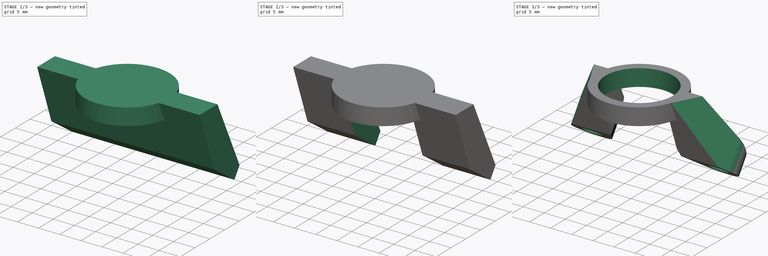
[diagram: build sequence overview — one tinted view per stage of 3, left to right]
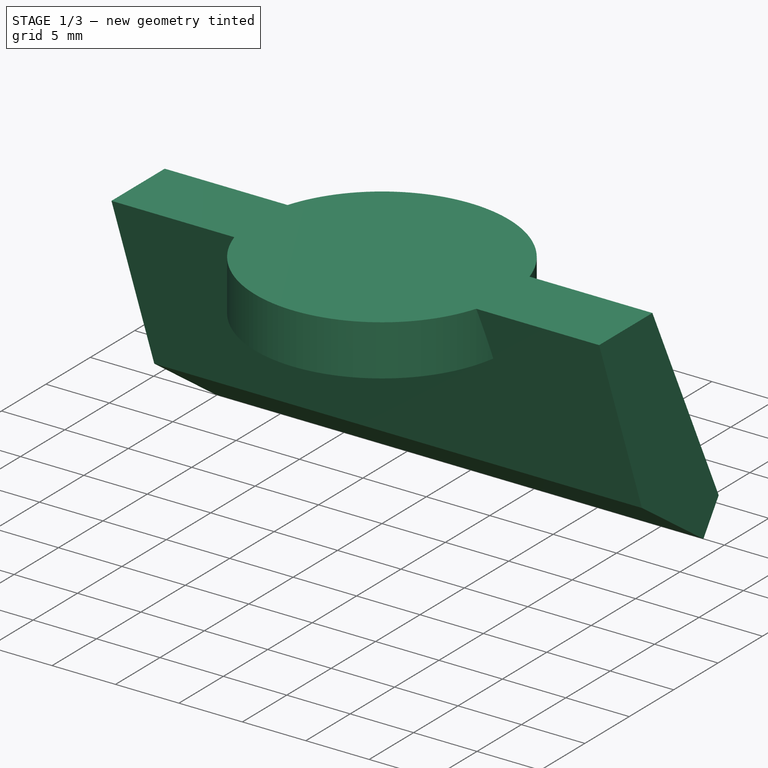
[diagram: stage 1 of 3 — iso view after this stage's code; geometry added in this stage tinted green]
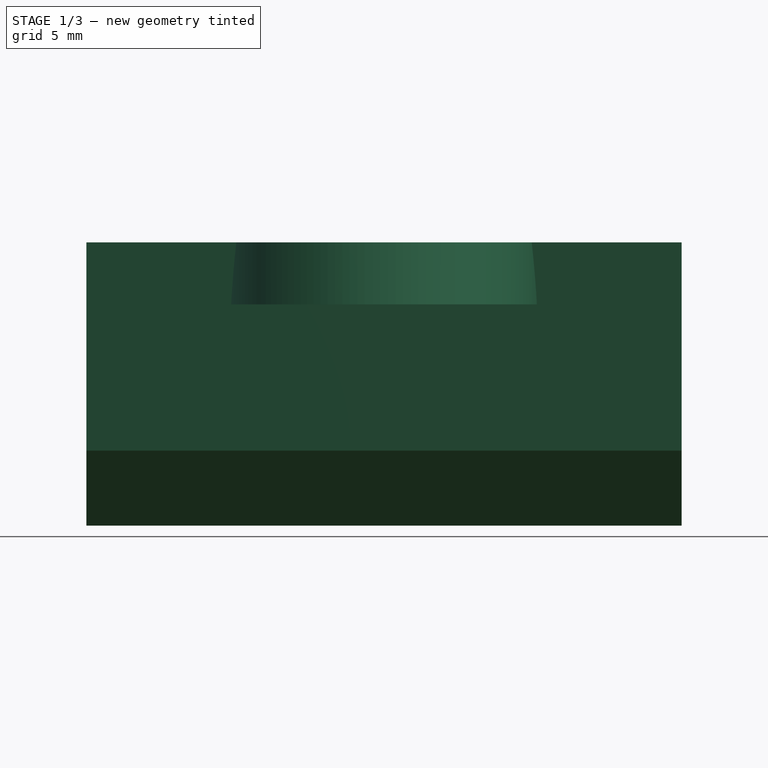
[diagram: stage 1 of 3 — front view after this stage's code; geometry added in this stage tinted green]
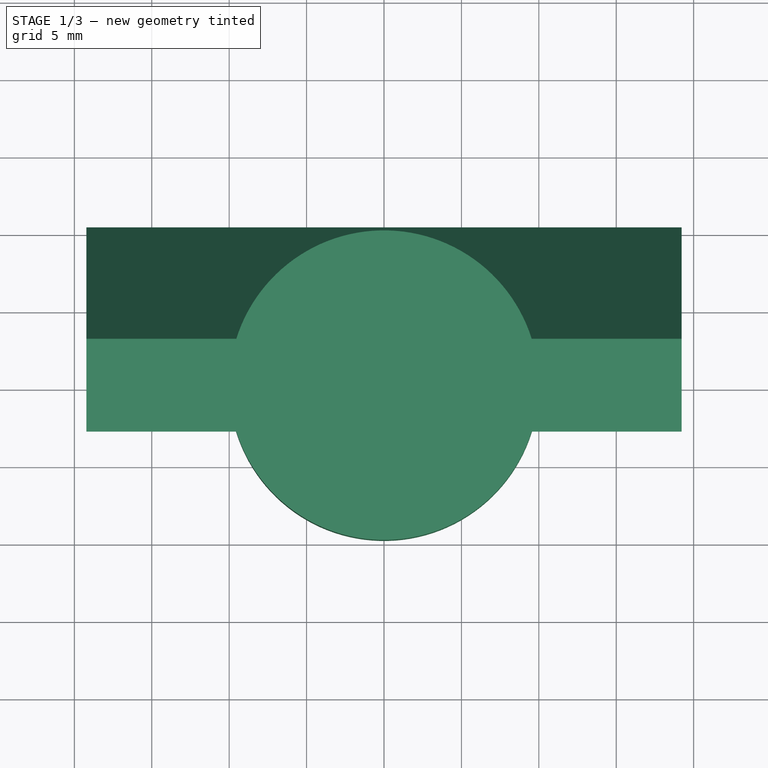
[diagram: stage 1 of 3 — top view after this stage's code; geometry added in this stage tinted green]
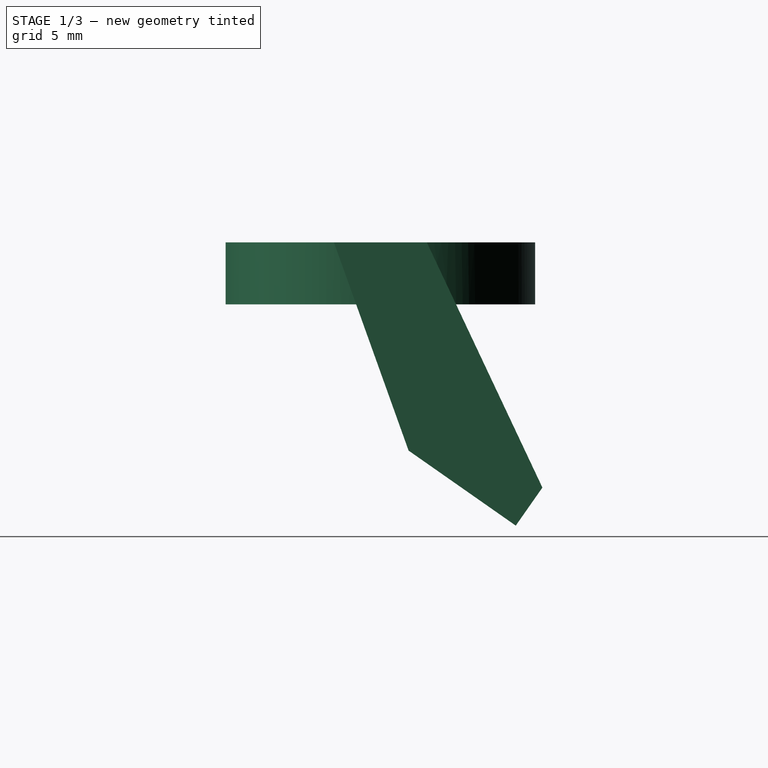
[diagram: stage 1 of 3 — right view after this stage's code; geometry added in this stage tinted green]
FCSTD DOCUMENT  (FreeCAD 0.18R13638 (Git))
Label: antenna_mount
License: All rights reserved
LicenseURL: http://en.wikipedia.org/wiki/All_rights_reserved
objects: Sketcher::SketchObject×5, PartDesign::Pocket×3, PartDesign::Pad×2, Spreadsheet::Sheet×1, PartDesign::Body×1
note: 16 computed .brp shape members not serialized (recipe doc carries the construction recipe); baked Part::Feature solids carry a one-line shape summary decoded from their .brp

FEATURE [Sketcher::SketchObject] Sketch
  MapMode = 5
  Support = -> [XY_Plane]
  expr: Constraints[1] = Data.antenna_mount_or
  sketch-geometry (1):
    g0: Circle CenterX=0 CenterY=0 CenterZ=0 NormalX=0 NormalY=0 NormalZ=1 AngleXU=0 Radius=10
  constraints (2):
    c: Coincident(g0,g-1)
    c: Radius(g0) = 10
FEATURE [PartDesign::Pad] Pad
  Length = 4
  Length2 = 100
  Profile = -> Sketch
  Type = 0
  expr: Length = Data.antenna_mount_h
FEATURE [Sketcher::SketchObject] Sketch001
  MapMode = 5
  Placement = pos=(0,0,0) rot=(0.57735,0.57735,0.57735;2.0944rad)
  Support = -> [YZ_Plane]
  expr: Constraints[14] = Data.standoff_mount_h
  expr: Constraints[7] = Data.antenna_mount_angle
  expr: Constraints[4] = Data.antenna_mount_h
  expr: Constraints[10] = Data.standoff_mount_od
  sketch-geometry (6):
    g0: LineSegment StartX=-3 StartY=4 StartZ=0 EndX=3 EndY=4 EndZ=0
    g1: LineSegment StartX=3 StartY=4 StartZ=0 EndX=10.465 EndY=-11.8362 EndZ=0
    g2: LineSegment StartX=10.465 StartY=-11.8362 StartZ=0 EndX=8.74425 EndY=-14.2937 EndZ=0
    g3: LineSegment StartX=8.74425 StartY=-14.2937 StartZ=0 EndX=1.82242 EndY=-9.44695 EndZ=0
    g4: LineSegment [constr] StartX=-6.91632 StartY=-1.59308 StartZ=0 EndX=-3 EndY=4 EndZ=0
    g5: LineSegment StartX=-3 StartY=4 StartZ=0 EndX=1.82242 EndY=-9.44695 EndZ=0
  constraints (15):
    c: Coincident(g1,g2)
    c: Coincident(g2,g3)
    c: Coincident(g4,g0)
    c: Horizontal(g0)
    c: DistanceY(g-1,g0) = 4
    c: Symmetric(g0,g0,g-2)
    c: Perpendicular(g3,g4)
    c: Angle(g3,g-1) = 0.610865
    c: Distance(g0) = 6
    c: Perpendicular(g2,g3)
    c: Distance(g3) = 8.45
    c: Coincident(g0,g1)
    c: Coincident(g0,g5)
    c: Coincident(g5,g3)
    c: Distance(g2) = 3
FEATURE [PartDesign::Pad] Pad001
  BaseFeature = -> Pad
  Length = 19.225
  Length2 = 19.225
  Profile = -> Sketch001
  Type = 4
  expr: Length2 = Data.support_w
  expr: Length = Data.support_w
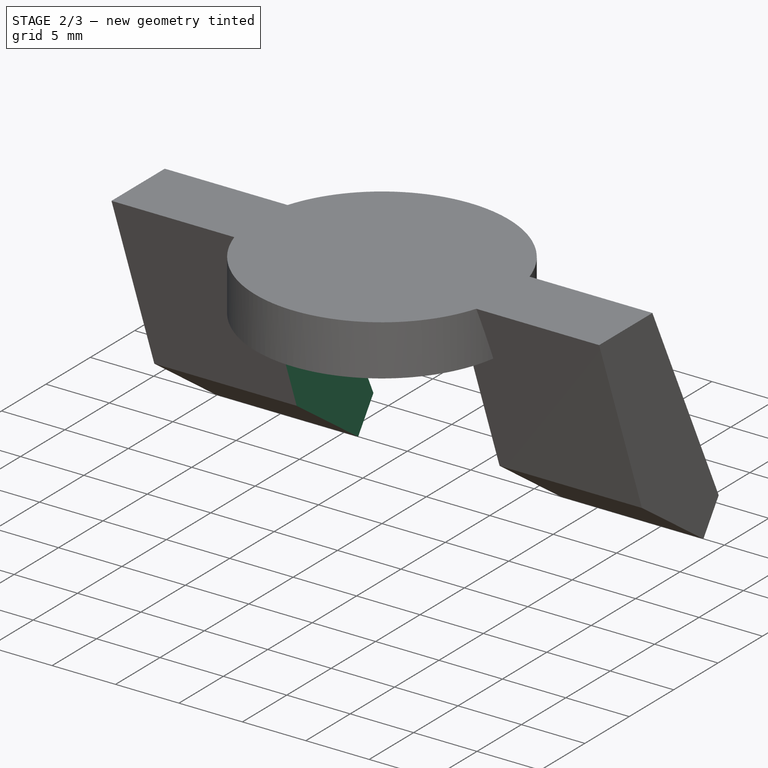
[diagram: stage 2 of 3 — iso view after this stage's code; geometry added in this stage tinted green]
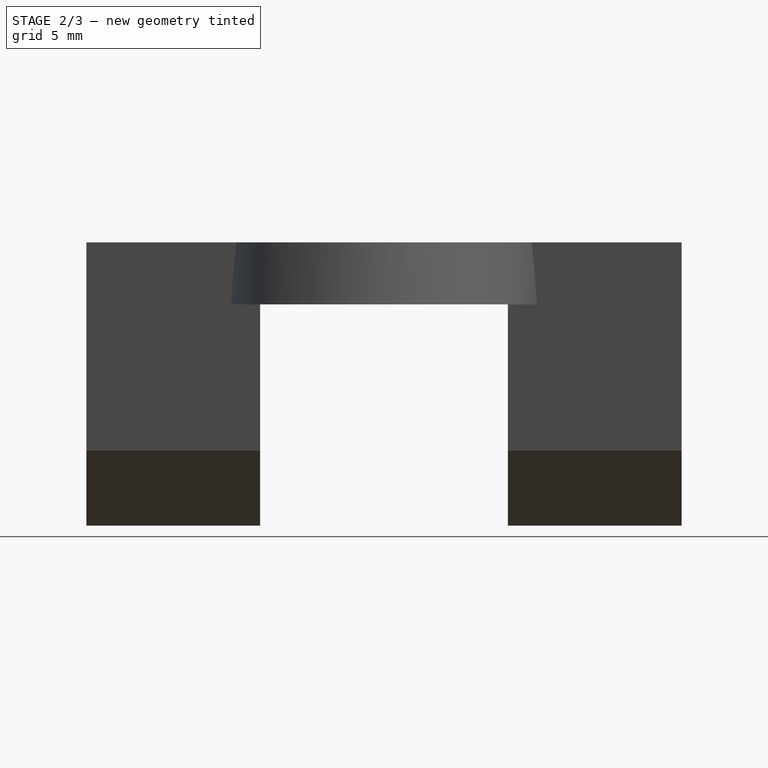
[diagram: stage 2 of 3 — front view after this stage's code; geometry added in this stage tinted green]
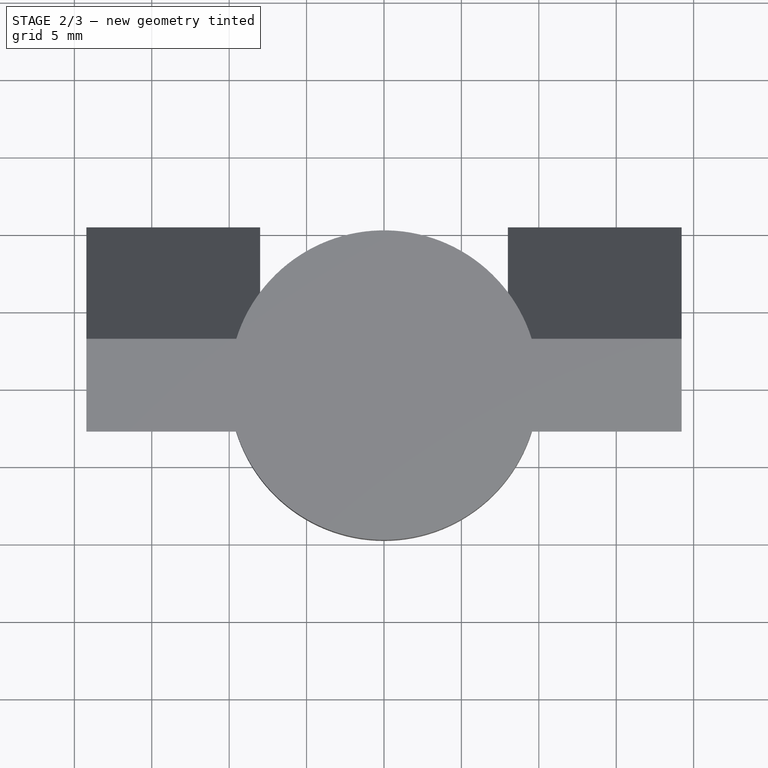
[diagram: stage 2 of 3 — top view after this stage's code; geometry added in this stage tinted green]
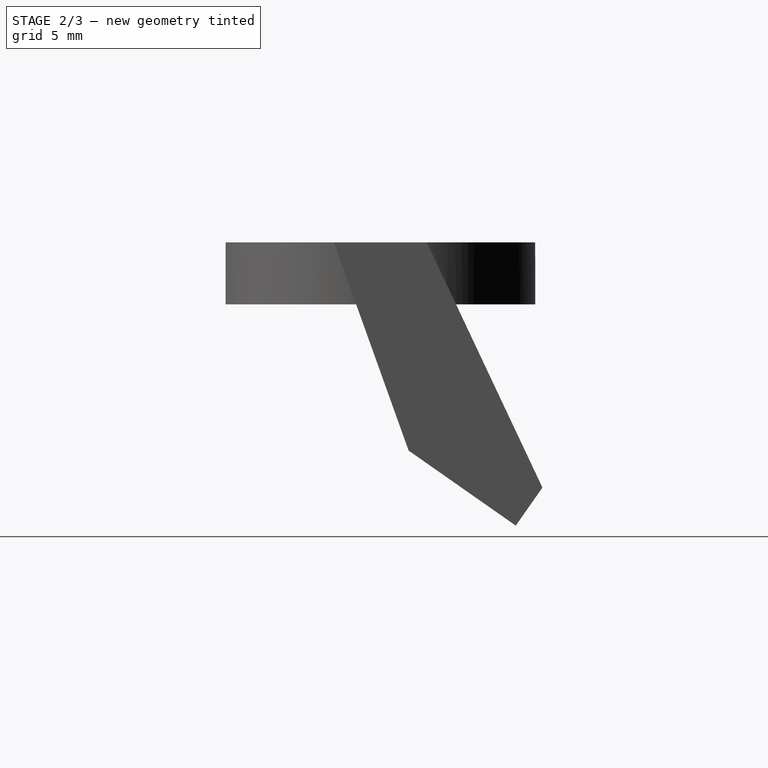
[diagram: stage 2 of 3 — right view after this stage's code; geometry added in this stage tinted green]
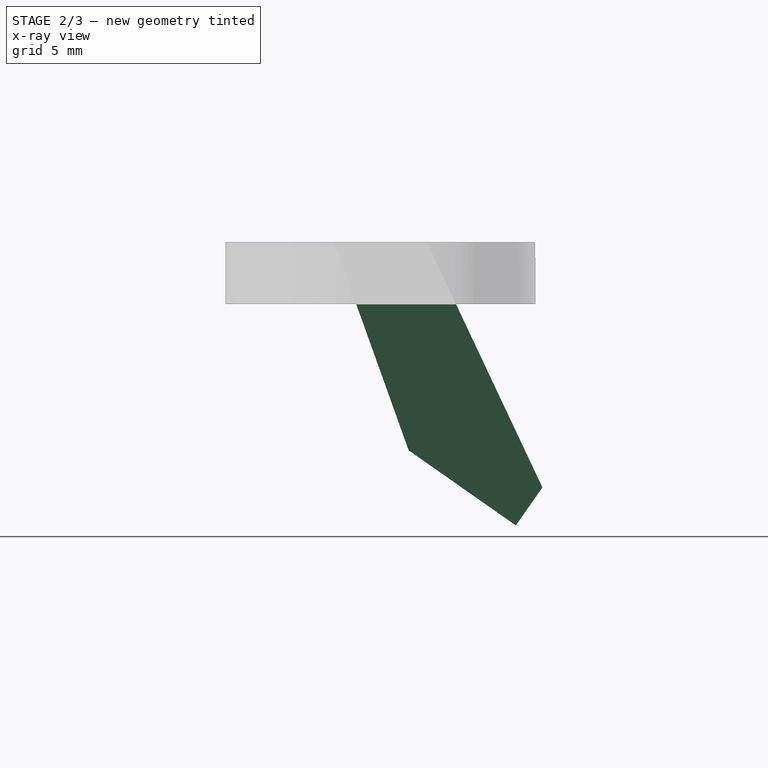
[diagram: stage 2 of 3 — x-ray composite at the right view; earlier geometry ghosted, this stage's added geometry solid]
FEATURE [Sketcher::SketchObject] Sketch002
  MapMode = 5
  Placement = pos=(0,0,0) rot=(1,0,0;1.5708rad)
  Support = -> [XZ_Plane]
  expr: Constraints[10] = Data.antenna_r * 2
  sketch-geometry (4):
    g0: LineSegment StartX=-8 StartY=0 StartZ=0 EndX=8 EndY=0 EndZ=0
    g1: LineSegment StartX=8 StartY=0 StartZ=0 EndX=8 EndY=-14.7085 EndZ=0
    g2: LineSegment StartX=8 StartY=-14.7085 StartZ=0 EndX=-8 EndY=-14.7085 EndZ=0
    g3: LineSegment StartX=-8 StartY=-14.7085 StartZ=0 EndX=-8 EndY=0 EndZ=0
  constraints (11):
    c: Coincident(g0,g1)
    c: Coincident(g1,g2)
    c: Coincident(g2,g3)
    c: Coincident(g3,g0)
    c: Horizontal(g0)
    c: Horizontal(g2)
    c: Vertical(g1)
    c: Vertical(g3)
    c: PointOnObject(g0,g-1)
    c: Symmetric(g0,g0,g-2)
    c: DistanceX(g0,g0) = 16
FEATURE [PartDesign::Pocket] Pocket
  BaseFeature = -> Pad001
  Length = 100
  Length2 = 100
  Profile = -> Sketch002
  Type = 4
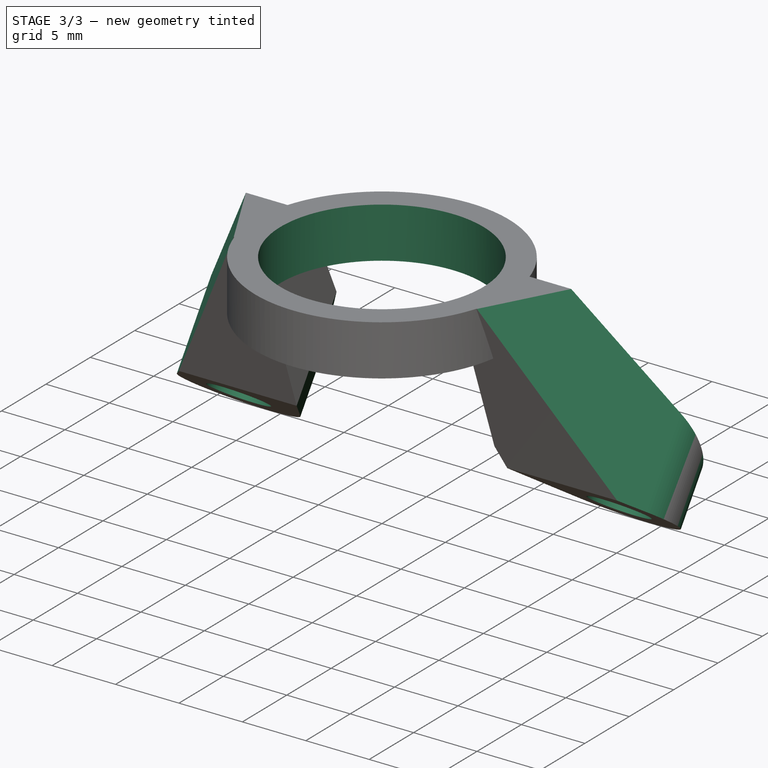
[diagram: stage 3 of 3 — iso view after this stage's code; geometry added in this stage tinted green]
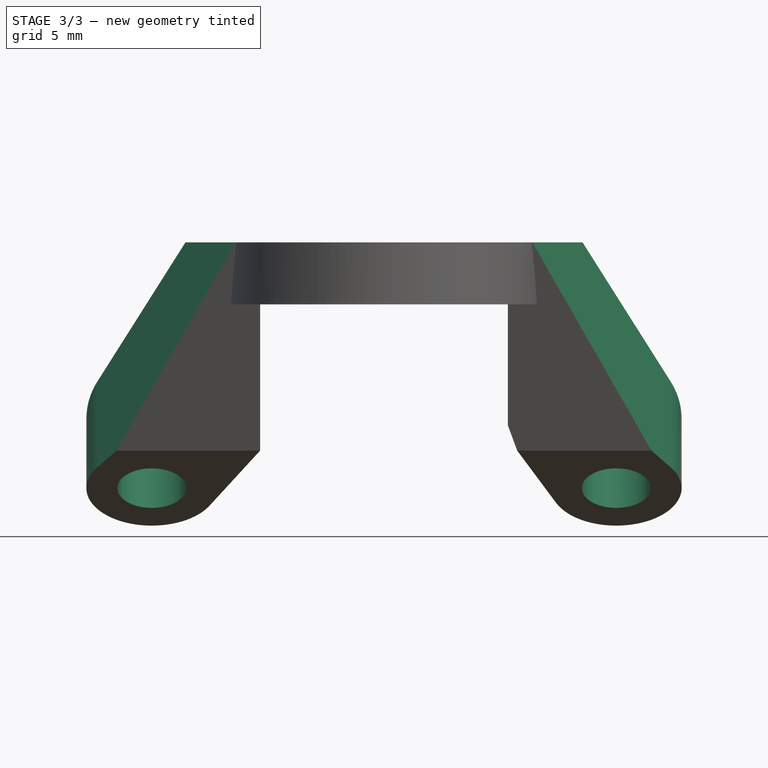
[diagram: stage 3 of 3 — front view after this stage's code; geometry added in this stage tinted green]
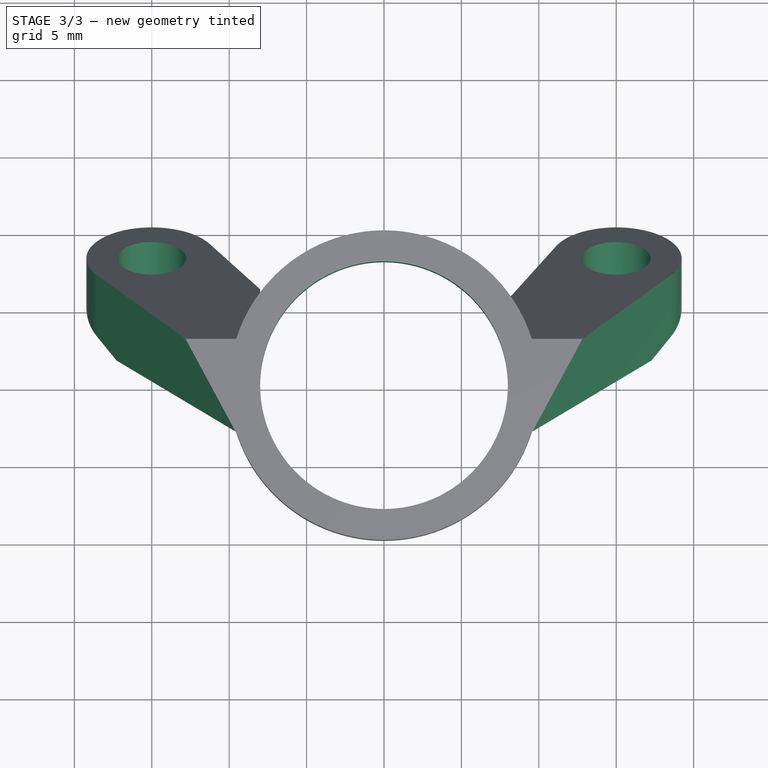
[diagram: stage 3 of 3 — top view after this stage's code; geometry added in this stage tinted green]
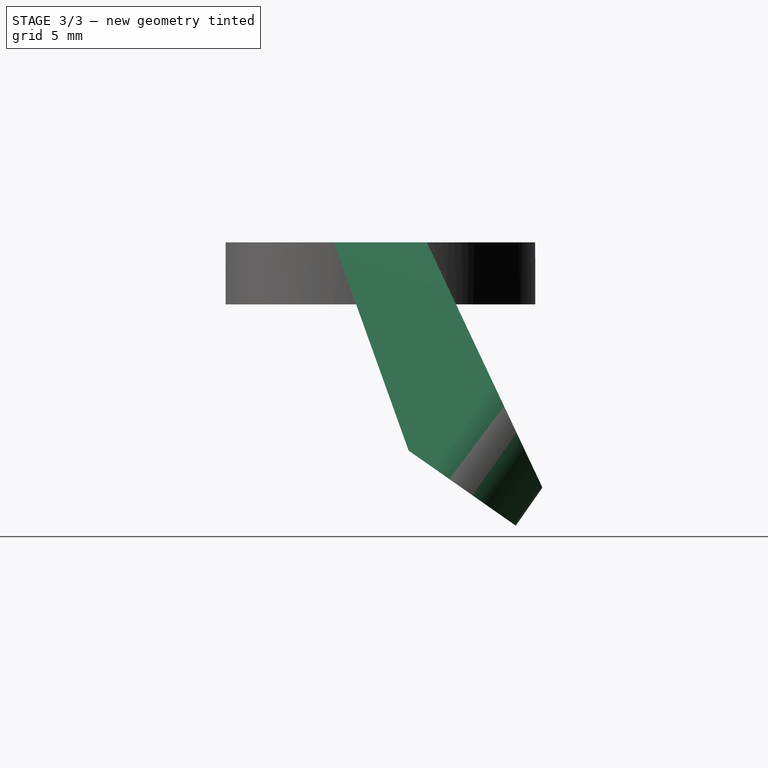
[diagram: stage 3 of 3 — right view after this stage's code; geometry added in this stage tinted green]
FEATURE [Spreadsheet::Sheet] Spreadsheet  label="Data"
  cells = A1=antenna_r; B1(antenna_r)=8; A2=antenna_mount_or; B2(antenna_mount_or)==antenna_r + 2; A3=antenna_mount_h; B3(antenna_mount_h)=4; A4=antenna_mount_angle; B4(antenna_mount_angle)=35; A5=standoff_mount_od; B5(standoff_mount_od)=8.4499999999999993; A6=standoff_dia; B6(standoff_dia)=4.4500000000000002; A7=standoff_mount_h; B7(standoff_mount_h)=3; A8=support_w; B8(support_w)==(standoff_distance + standoff_mount_od) / 2; A9=standoff_distance; B9(standoff_distance)=30
FEATURE [Sketcher::SketchObject] Sketch005
  ExternalGeometry = -> [Pocket]
  MapMode = 5
  Placement = pos=(0,-3.83906,-5.48274) rot=(1,0,0;2.53073rad)
  Support = -> [Pocket]
  expr: Constraints[17] = Data.standoff_mount_od / 2
  expr: Constraints[1] = -Data.standoff_distance / 2
  expr: Constraints[16] = Data.standoff_mount_od / 2
  expr: Constraints[0] = Data.standoff_dia / 2
  expr: Constraints[28] = Data.standoff_mount_od / 2
  sketch-geometry (18):
    g0: Circle CenterX=-15 CenterY=-11.1364 CenterZ=0 NormalX=0 NormalY=0 NormalZ=1 AngleXU=0 Radius=2.225
    g1: Circle CenterX=15 CenterY=-11.1364 CenterZ=0 NormalX=0 NormalY=0 NormalZ=1 AngleXU=0 Radius=2.225
    g2: LineSegment [constr] StartX=-15 StartY=-11.1364 StartZ=0 EndX=0 EndY=-11.1364 EndZ=0
    g3: LineSegment [constr] StartX=0 StartY=-11.1364 StartZ=0 EndX=15 EndY=-11.1364 EndZ=0
    g4: ArcOfCircle CenterX=-15 CenterY=-11.1364 CenterZ=0 NormalX=0 NormalY=0 NormalZ=1 AngleXU=0 Radius=4.225 StartAngle=2.55873 EndAngle=5.79847
    g5: ArcOfCircle CenterX=15 CenterY=-11.1364 CenterZ=0 NormalX=0 NormalY=0 NormalZ=1 AngleXU=0 Radius=4.225 StartAngle=3.54499 EndAngle=6.86605
    g6: LineSegment StartX=-21.0173 StartY=4.93485 StartZ=0 EndX=-21.0173 EndY=-22.4892 EndZ=0
    g7: LineSegment StartX=-21.0173 StartY=-22.4892 StartZ=0 EndX=21.0173 EndY=-22.4892 EndZ=0
    g8: LineSegment StartX=21.0173 StartY=-22.4892 StartZ=0 EndX=21.0173 EndY=4.93485 EndZ=0
    g9: LineSegment StartX=-9.46534 StartY=4.93485 StartZ=0 EndX=-18.5274 EndY=-8.81088 EndZ=0
    g10: LineSegment StartX=-21.0173 StartY=4.93485 StartZ=0 EndX=-9.46534 EndY=4.93485 EndZ=0
    g11: LineSegment StartX=9.46534 StartY=4.93485 StartZ=0 EndX=18.5274 EndY=-8.81088 EndZ=0
    g12: LineSegment StartX=9.46534 StartY=4.93485 StartZ=0 EndX=21.0173 EndY=4.93485 EndZ=0
    g13: LineSegment StartX=-11.2617 StartY=-13.105 StartZ=0 EndX=-8 EndY=-6.91138 EndZ=0
    g14: LineSegment StartX=11.1141 StartY=-12.7949 StartZ=0 EndX=8 EndY=-5.4985 EndZ=0
    g15: LineSegment StartX=-8 StartY=-6.91138 StartZ=0 EndX=-8 EndY=-15.4027 EndZ=0
    g16: LineSegment StartX=-8 StartY=-15.4027 StartZ=0 EndX=8 EndY=-15.4027 EndZ=0
    g17: LineSegment StartX=8 StartY=-15.4027 StartZ=0 EndX=8 EndY=-5.4985 EndZ=0
  constraints (43):
    c: Radius(g0) = 2.225
    c: DistanceX(g-2,g0) = -15
    c: Equal(g1,g0)
    c: Horizontal(g2)
    c: Horizontal(g3)
    c: Coincident(g1,g3)
    c: PointOnObject(g3,g-2)
    c: PointOnObject(g2,g-2)
    c: Coincident(g0,g2)
    c: Equal(g3,g2)
    c: Coincident(g5,g1)
    c: Coincident(g4,g0)
    c: Vertical(g6)
    c: Coincident(g6,g7)
    c: Horizontal(g7)
    c: Coincident(g7,g8)
    c: Radius(g4) = 4.225
    c: DistanceY(g0,g-3) = 4.225
    c: Coincident(g10,g9)
    c: Tangent(g9,g4) = -1.5708
    c: Coincident(g10,g6)
    c: Horizontal(g12)
    c: Coincident(g12,g8)
    c: Coincident(g11,g12)
    c: Equal(g9,g11)
    c: Tangent(g5,g11) = 1.5708
    c: Horizontal(g10)
    c: Vertical(g8)
    c: Radius(g5) = 4.225
    c: Tangent(g4,g13) = -1.5708
    c: Vertical(g15)
    c: Coincident(g15,g16)
    c: Horizontal(g16)
    c: Coincident(g16,g17)
    c: Vertical(g17)
    c: Coincident(g17,g14)
    c: Tangent(g14,g5) = 1.5708
    c: Equal(g10,g12)
    c: Equal(g8,g6)
    c: Symmetric(g6,g7,g-2)
    c: Symmetric(g15,g16,g-2)
    c: Coincident(g15,g-3)
    c: Coincident(g13,g15)
FEATURE [PartDesign::Pocket] Pocket002
  BaseFeature = -> Pocket
  Length = 100
  Length2 = 100
  Profile = -> Sketch005
  Reversed = true
  Type = 4
FEATURE [Sketcher::SketchObject] Sketch006
  MapMode = 5
  Placement = pos=(0,0,4) rot=(0,0,1;0rad)
  Support = -> [Pocket002]
  expr: Constraints[1] = Data.antenna_r
  sketch-geometry (1):
    g0: Circle CenterX=0 CenterY=0 CenterZ=0 NormalX=0 NormalY=0 NormalZ=1 AngleXU=0 Radius=8
  constraints (2):
    c: Coincident(g0,g-1)
    c: Radius(g0) = 8
FEATURE [PartDesign::Pocket] Pocket003  label="antenna through hole"
  BaseFeature = -> Pocket002
  Length = 5
  Length2 = 100
  Profile = -> Sketch006
  Type = 1
FEATURE [PartDesign::Body] Body
  Group = -> [Sketch,Pad,Sketch001,Pad001,Sketch002,Pocket,Sketch005,Pocket002,Sketch006,Pocket003]
  Origin = -> Origin
  Tip = -> Pocket003
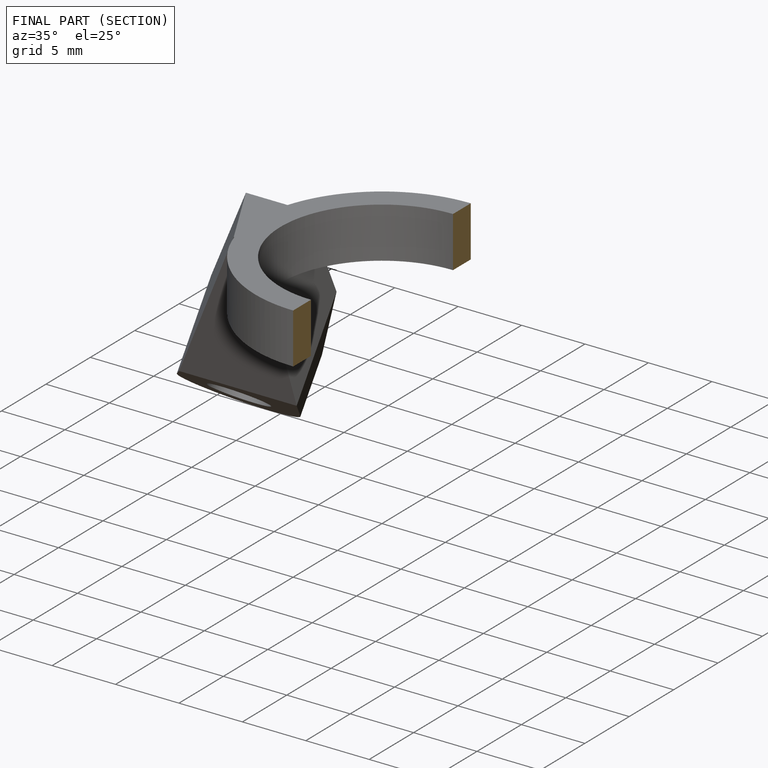
[diagram: finished part — half-section view (interior)]
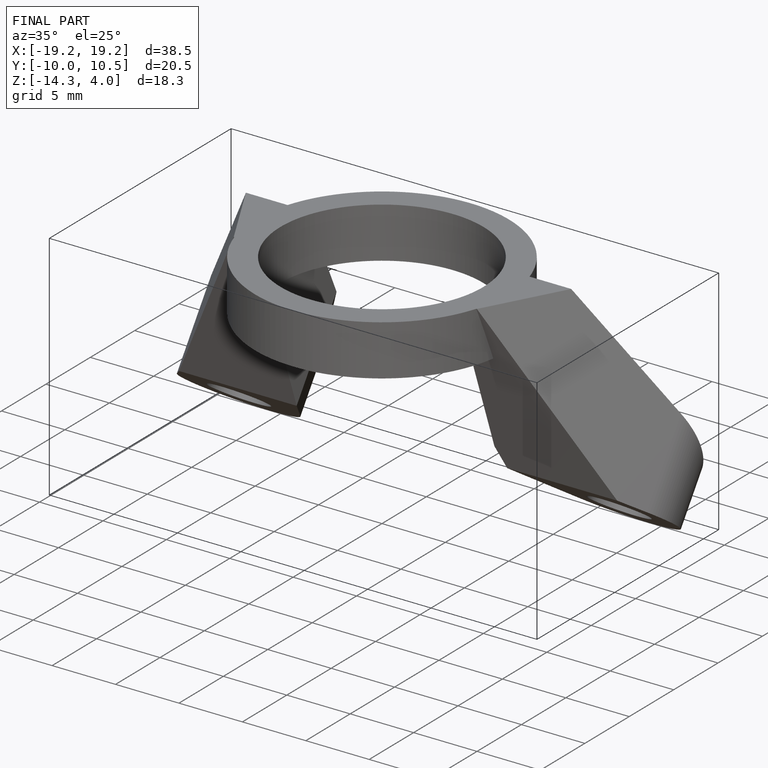
[diagram: finished part — iso view with bounding-box wireframe]
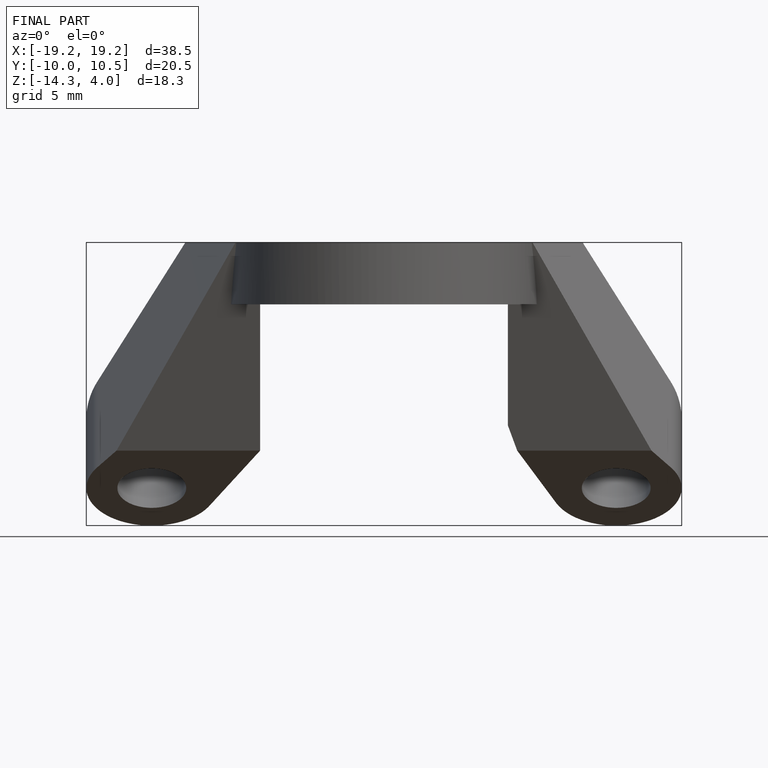
[diagram: finished part — front view with bounding-box wireframe]
